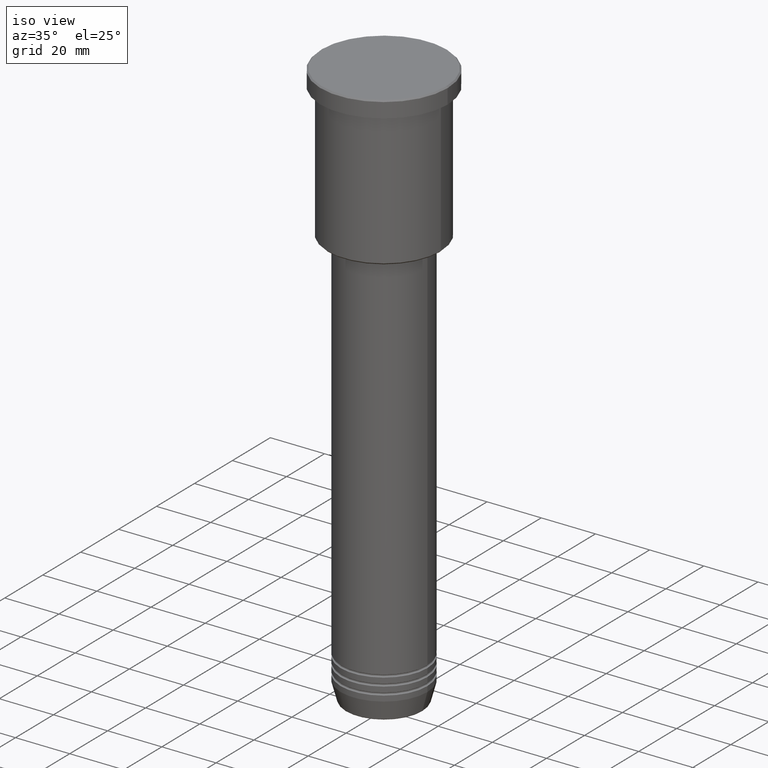
[diagram: clean part render]
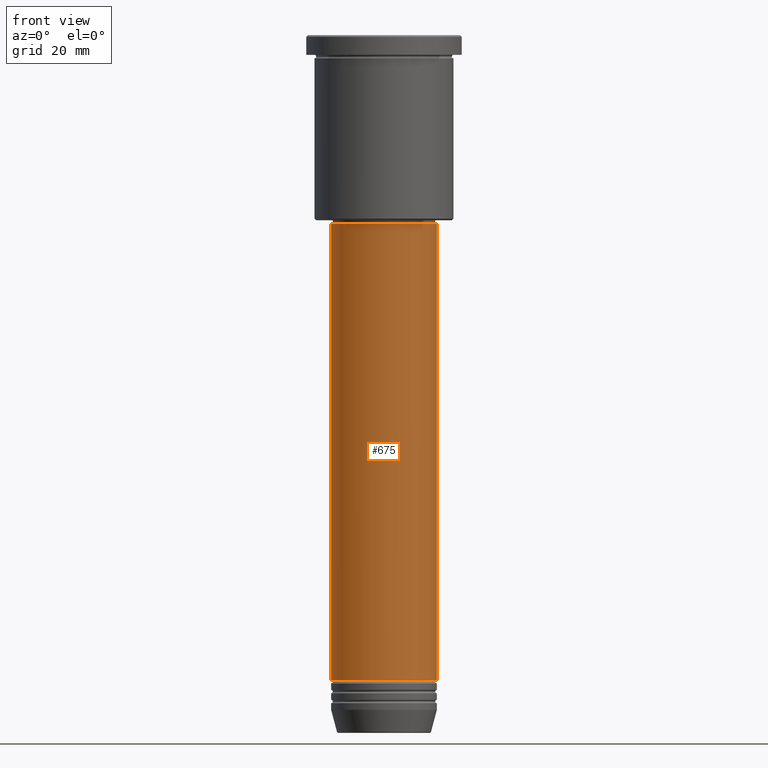
[diagram: tour spotlight — one face highlighted and labeled with its STEP entity id]
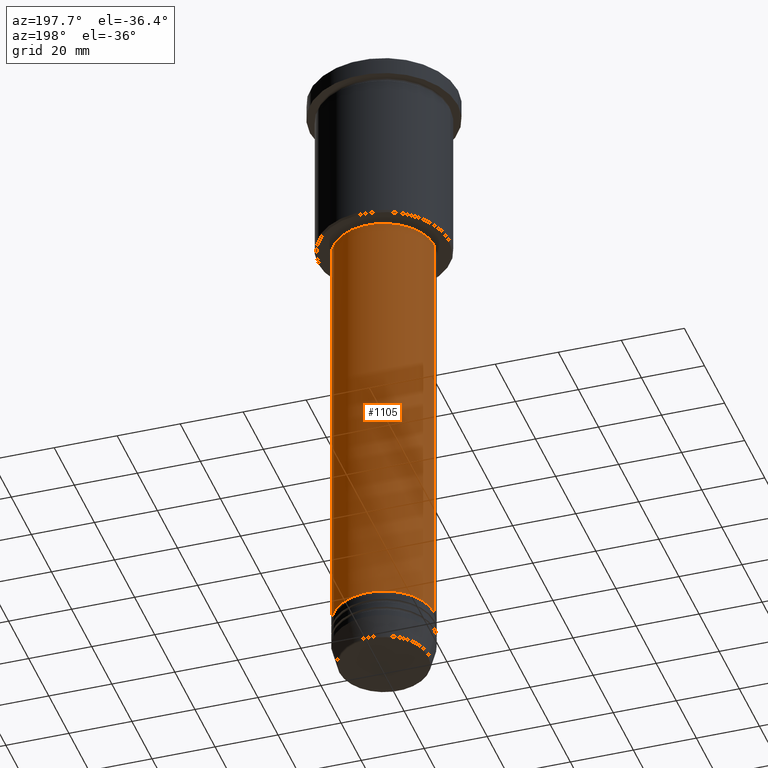
[diagram: tour spotlight — one face highlighted and labeled with its STEP entity id]
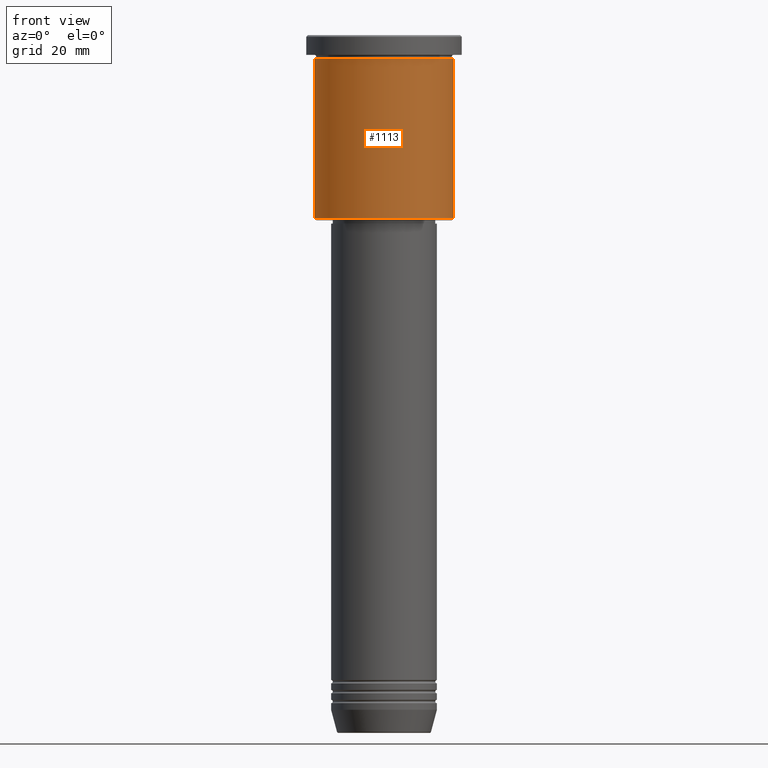
[diagram: tour spotlight — one face highlighted and labeled with its STEP entity id]
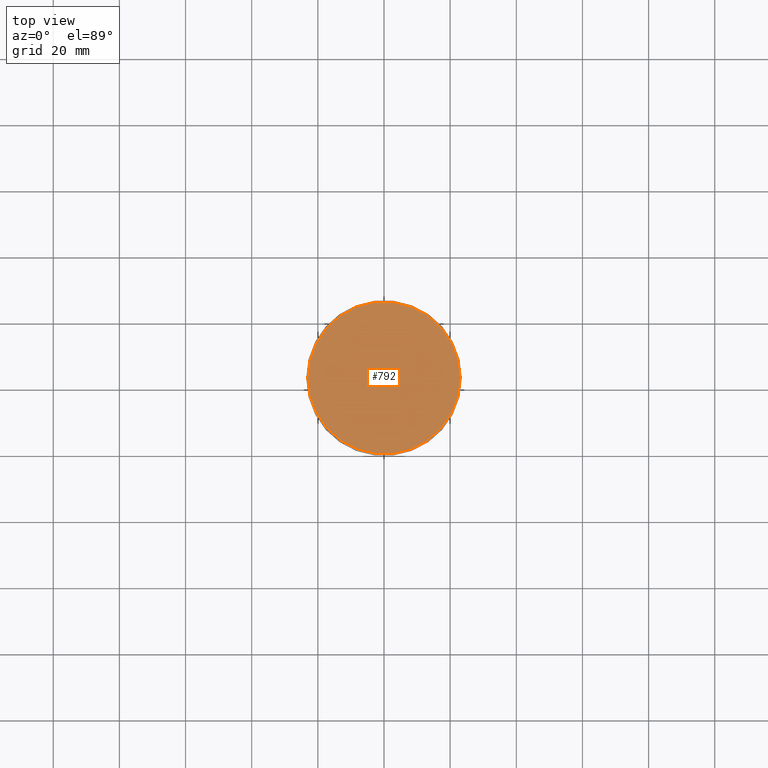
[diagram: tour spotlight — one face highlighted and labeled with its STEP entity id]
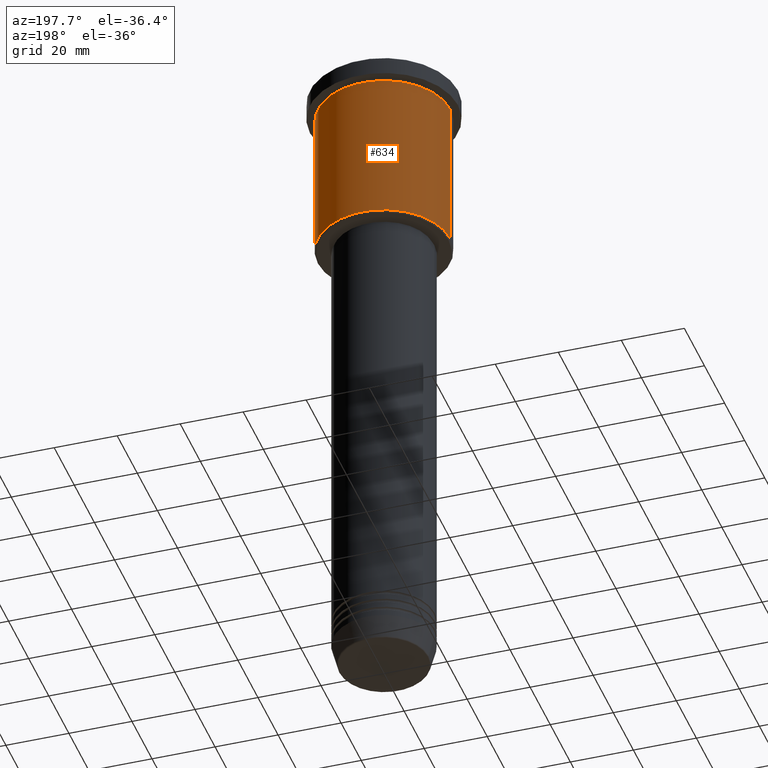
[diagram: tour spotlight — one face highlighted and labeled with its STEP entity id]
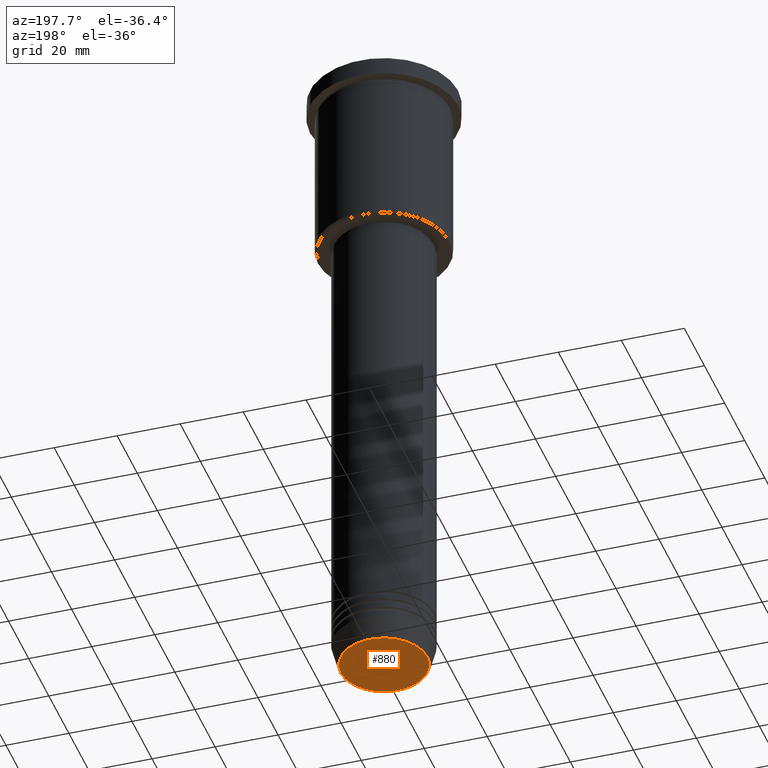
[diagram: tour spotlight — one face highlighted and labeled with its STEP entity id]
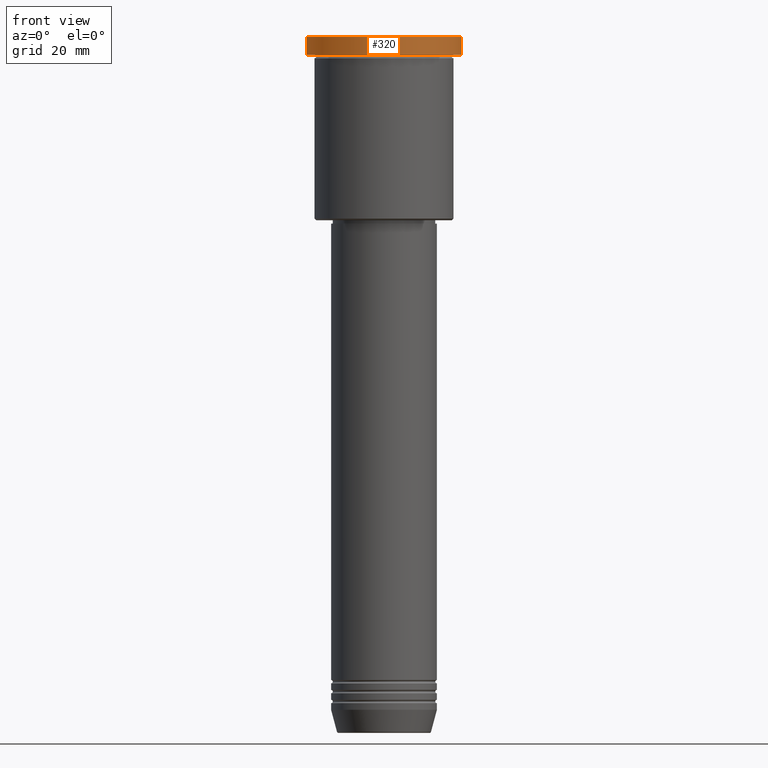
[diagram: tour spotlight — one face highlighted and labeled with its STEP entity id]
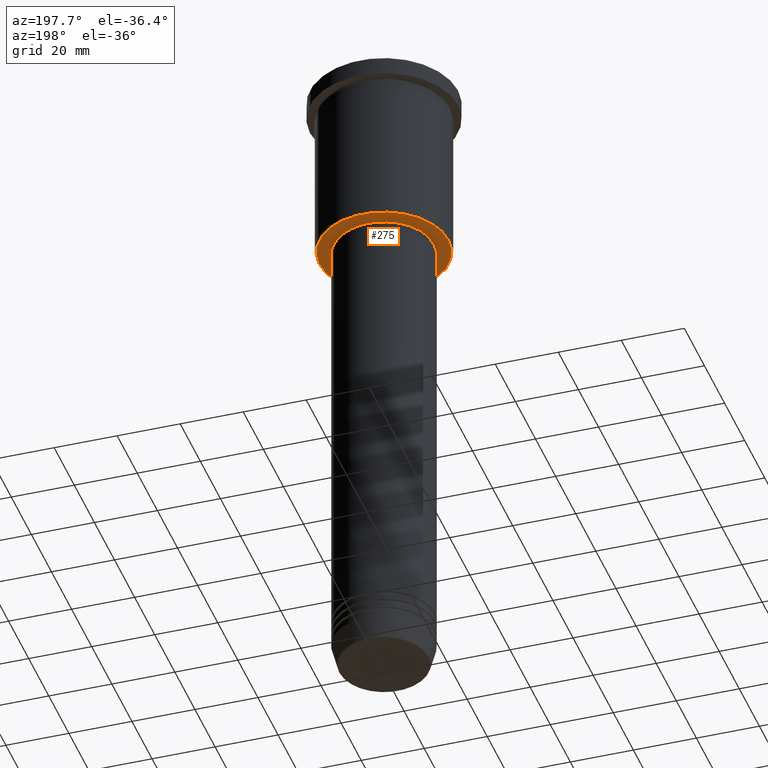
[diagram: tour spotlight — one face highlighted and labeled with its STEP entity id]
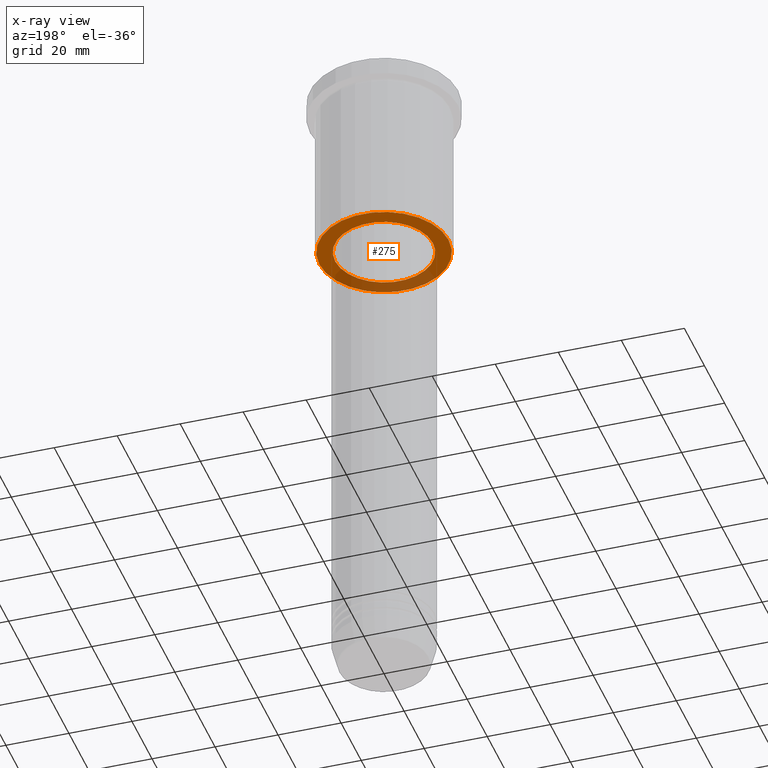
[diagram: x-ray of the same camera — body ghosted, this tour face saturated]
A machine part: a face-by-face anatomy tour. The part has 43 B-rep faces; the first image is the clean iso view, then the 8 largest visible faces are spotlighted one at a time (largest first), each with its STEP entity span.

Face 1 — front view, entity #675. In plain terms, the highlighted cylindrical surface (partial cylindrical patch) has radius 16 mm, axis along (-0, -0, 1).
Definition (entity closure, byte-faithful):
#39 = DIRECTION ( 'NONE',  ( -0.000000000000000000, -0.000000000000000000, 1.000000000000000000 ) ) ;
#50 = VERTEX_POINT ( 'NONE', #409 ) ;
#82 = CARTESIAN_POINT ( 'NONE',  ( 16.00000000000000000, 0.000000000000000000, 0.000000000000000000 ) ) ;
#142 = ORIENTED_EDGE ( 'NONE', *, *, #784, .F. ) ;
#284 = EDGE_LOOP ( 'NONE', ( #142, #872, #920, #397 ) ) ;
#291 = AXIS2_PLACEMENT_3D ( 'NONE', #305, #1034, #1046 ) ;
#304 = DIRECTION ( 'NONE',  ( 1.000000000000000000, 0.000000000000000000, 0.000000000000000000 ) ) ;
#305 = CARTESIAN_POINT ( 'NONE',  ( 0.000000000000000000, 0.000000000000000000, -57.00000000000000000 ) ) ;
#333 = VERTEX_POINT ( 'NONE', #846 ) ;
#397 = ORIENTED_EDGE ( 'NONE', *, *, #510, .F. ) ;
#402 = FACE_OUTER_BOUND ( 'NONE', #284, .T. ) ;
#406 = CARTESIAN_POINT ( 'NONE',  ( 0.000000000000000000, 0.000000000000000000, 0.000000000000000000 ) ) ;
#409 = CARTESIAN_POINT ( 'NONE',  ( -16.00000000000000000, 1.959434878635765131E-15, -57.00000000000000000 ) ) ;
#500 = CARTESIAN_POINT ( 'NONE',  ( -16.00000000000000000, 1.959434878635765131E-15, 0.000000000000000000 ) ) ;
#501 = VERTEX_POINT ( 'NONE', #859 ) ;
#510 = EDGE_CURVE ( 'NONE', #50, #501, #569, .T. ) ;
#531 = VECTOR ( 'NONE', #873, 1000.000000000000000 ) ;
#565 = CARTESIAN_POINT ( 'NONE',  ( 0.000000000000000000, 0.000000000000000000, -194.9999999999999716 ) ) ;
#569 = CIRCLE ( 'NONE', #291, 16.00000000000000000 ) ;
#588 = AXIS2_PLACEMENT_3D ( 'NONE', #565, #39, #304 ) ;
#675 = ADVANCED_FACE ( 'NONE', ( #402 ), #953, .T. ) ;
#760 = DIRECTION ( 'NONE',  ( 1.000000000000000000, 0.000000000000000000, 0.000000000000000000 ) ) ;
#784 = EDGE_CURVE ( 'NONE', #999, #50, #1043, .T. ) ;
#787 = CIRCLE ( 'NONE', #588, 16.00000000000000000 ) ;
#846 = CARTESIAN_POINT ( 'NONE',  ( 16.00000000000000000, 0.000000000000000000, -194.9999999999999716 ) ) ;
#859 = CARTESIAN_POINT ( 'NONE',  ( 16.00000000000000000, 0.000000000000000000, -57.00000000000000000 ) ) ;
#872 = ORIENTED_EDGE ( 'NONE', *, *, #1100, .T. ) ;
#873 = DIRECTION ( 'NONE',  ( -0.000000000000000000, -0.000000000000000000, 1.000000000000000000 ) ) ;
#920 = ORIENTED_EDGE ( 'NONE', *, *, #939, .T. ) ;
#938 = CARTESIAN_POINT ( 'NONE',  ( -16.00000000000000000, 1.959434878635765131E-15, -194.9999999999999716 ) ) ;
#939 = EDGE_CURVE ( 'NONE', #333, #501, #982, .T. ) ;
#953 = CYLINDRICAL_SURFACE ( 'NONE', #1170, 16.00000000000000000 ) ;
#982 = LINE ( 'NONE', #82, #1117 ) ;
#999 = VERTEX_POINT ( 'NONE', #938 ) ;
#1034 = DIRECTION ( 'NONE',  ( -0.000000000000000000, -0.000000000000000000, 1.000000000000000000 ) ) ;
#1043 = LINE ( 'NONE', #500, #531 ) ;
#1046 = DIRECTION ( 'NONE',  ( 1.000000000000000000, 0.000000000000000000, 0.000000000000000000 ) ) ;
#1054 = DIRECTION ( 'NONE',  ( -0.000000000000000000, -0.000000000000000000, 1.000000000000000000 ) ) ;
#1087 = DIRECTION ( 'NONE',  ( -0.000000000000000000, -0.000000000000000000, 1.000000000000000000 ) ) ;
#1100 = EDGE_CURVE ( 'NONE', #999, #333, #787, .T. ) ;
#1117 = VECTOR ( 'NONE', #1087, 1000.000000000000000 ) ;
#1170 = AXIS2_PLACEMENT_3D ( 'NONE', #406, #1054, #760 ) ;

Face 2 — auxiliary view, entity #1105. In plain terms, the highlighted cylindrical surface (partial cylindrical patch) has radius 16 mm, axis along (-0, -0, 1).
Definition (entity closure, byte-faithful):
#50 = VERTEX_POINT ( 'NONE', #409 ) ;
#82 = CARTESIAN_POINT ( 'NONE',  ( 16.00000000000000000, 0.000000000000000000, 0.000000000000000000 ) ) ;
#129 = ORIENTED_EDGE ( 'NONE', *, *, #539, .T. ) ;
#163 = ORIENTED_EDGE ( 'NONE', *, *, #784, .T. ) ;
#173 = EDGE_LOOP ( 'NONE', ( #129, #163, #980, #282 ) ) ;
#282 = ORIENTED_EDGE ( 'NONE', *, *, #939, .F. ) ;
#333 = VERTEX_POINT ( 'NONE', #846 ) ;
#409 = CARTESIAN_POINT ( 'NONE',  ( -16.00000000000000000, 1.959434878635765131E-15, -57.00000000000000000 ) ) ;
#435 = CIRCLE ( 'NONE', #1132, 16.00000000000000000 ) ;
#500 = CARTESIAN_POINT ( 'NONE',  ( -16.00000000000000000, 1.959434878635765131E-15, 0.000000000000000000 ) ) ;
#501 = VERTEX_POINT ( 'NONE', #859 ) ;
#520 = CARTESIAN_POINT ( 'NONE',  ( 0.000000000000000000, 0.000000000000000000, -194.9999999999999716 ) ) ;
#529 = AXIS2_PLACEMENT_3D ( 'NONE', #520, #894, #640 ) ;
#531 = VECTOR ( 'NONE', #873, 1000.000000000000000 ) ;
#539 = EDGE_CURVE ( 'NONE', #333, #999, #1153, .T. ) ;
#640 = DIRECTION ( 'NONE',  ( 1.000000000000000000, 0.000000000000000000, 0.000000000000000000 ) ) ;
#673 = FACE_OUTER_BOUND ( 'NONE', #173, .T. ) ;
#683 = DIRECTION ( 'NONE',  ( 1.000000000000000000, 0.000000000000000000, 0.000000000000000000 ) ) ;
#692 = CARTESIAN_POINT ( 'NONE',  ( 0.000000000000000000, 0.000000000000000000, -57.00000000000000000 ) ) ;
#704 = EDGE_CURVE ( 'NONE', #501, #50, #435, .T. ) ;
#755 = CYLINDRICAL_SURFACE ( 'NONE', #765, 16.00000000000000000 ) ;
#765 = AXIS2_PLACEMENT_3D ( 'NONE', #772, #1130, #1064 ) ;
#772 = CARTESIAN_POINT ( 'NONE',  ( 0.000000000000000000, 0.000000000000000000, 0.000000000000000000 ) ) ;
#784 = EDGE_CURVE ( 'NONE', #999, #50, #1043, .T. ) ;
#846 = CARTESIAN_POINT ( 'NONE',  ( 16.00000000000000000, 0.000000000000000000, -194.9999999999999716 ) ) ;
#859 = CARTESIAN_POINT ( 'NONE',  ( 16.00000000000000000, 0.000000000000000000, -57.00000000000000000 ) ) ;
#873 = DIRECTION ( 'NONE',  ( -0.000000000000000000, -0.000000000000000000, 1.000000000000000000 ) ) ;
#894 = DIRECTION ( 'NONE',  ( -0.000000000000000000, -0.000000000000000000, 1.000000000000000000 ) ) ;
#938 = CARTESIAN_POINT ( 'NONE',  ( -16.00000000000000000, 1.959434878635765131E-15, -194.9999999999999716 ) ) ;
#939 = EDGE_CURVE ( 'NONE', #333, #501, #982, .T. ) ;
#980 = ORIENTED_EDGE ( 'NONE', *, *, #704, .F. ) ;
#982 = LINE ( 'NONE', #82, #1117 ) ;
#999 = VERTEX_POINT ( 'NONE', #938 ) ;
#1043 = LINE ( 'NONE', #500, #531 ) ;
#1064 = DIRECTION ( 'NONE',  ( 1.000000000000000000, 0.000000000000000000, 0.000000000000000000 ) ) ;
#1066 = DIRECTION ( 'NONE',  ( -0.000000000000000000, -0.000000000000000000, 1.000000000000000000 ) ) ;
#1087 = DIRECTION ( 'NONE',  ( -0.000000000000000000, -0.000000000000000000, 1.000000000000000000 ) ) ;
#1105 = ADVANCED_FACE ( 'NONE', ( #673 ), #755, .T. ) ;
#1117 = VECTOR ( 'NONE', #1087, 1000.000000000000000 ) ;
#1130 = DIRECTION ( 'NONE',  ( -0.000000000000000000, -0.000000000000000000, 1.000000000000000000 ) ) ;
#1132 = AXIS2_PLACEMENT_3D ( 'NONE', #692, #1066, #683 ) ;
#1153 = CIRCLE ( 'NONE', #529, 16.00000000000000000 ) ;

Face 3 — front view, entity #1113. In plain terms, the highlighted cylindrical surface (partial cylindrical patch) has radius 21 mm, axis along (-0, -0, 1).
Definition (entity closure, byte-faithful):
#30 = CYLINDRICAL_SURFACE ( 'NONE', #204, 21.00000000000000000 ) ;
#37 = ORIENTED_EDGE ( 'NONE', *, *, #538, .F. ) ;
#52 = ORIENTED_EDGE ( 'NONE', *, *, #132, .F. ) ;
#54 = CIRCLE ( 'NONE', #722, 21.00000000000000000 ) ;
#66 = DIRECTION ( 'NONE',  ( -0.000000000000000000, -0.000000000000000000, 1.000000000000000000 ) ) ;
#76 = EDGE_CURVE ( 'NONE', #593, #1124, #54, .T. ) ;
#86 = CARTESIAN_POINT ( 'NONE',  ( 0.000000000000000000, 0.000000000000000000, -6.999999999999994671 ) ) ;
#115 = EDGE_CURVE ( 'NONE', #1124, #1047, #175, .T. ) ;
#132 = EDGE_CURVE ( 'NONE', #977, #1047, #257, .T. ) ;
#153 = CARTESIAN_POINT ( 'NONE',  ( -21.00000000000000000, 2.571758278209441661E-15, -55.49999999999999289 ) ) ;
#175 = LINE ( 'NONE', #535, #1150 ) ;
#204 = AXIS2_PLACEMENT_3D ( 'NONE', #589, #849, #942 ) ;
#248 = DIRECTION ( 'NONE',  ( -0.000000000000000000, -0.000000000000000000, 1.000000000000000000 ) ) ;
#257 = CIRCLE ( 'NONE', #783, 21.00000000000000000 ) ;
#260 = DIRECTION ( 'NONE',  ( -0.000000000000000000, -0.000000000000000000, 1.000000000000000000 ) ) ;
#344 = DIRECTION ( 'NONE',  ( -1.000000000000000000, 0.000000000000000000, 0.000000000000000000 ) ) ;
#422 = EDGE_LOOP ( 'NONE', ( #37, #536, #782, #52 ) ) ;
#446 = DIRECTION ( 'NONE',  ( -0.000000000000000000, -0.000000000000000000, 1.000000000000000000 ) ) ;
#485 = LINE ( 'NONE', #961, #1004 ) ;
#486 = CARTESIAN_POINT ( 'NONE',  ( 21.00000000000000000, 0.000000000000000000, -55.49999999999999289 ) ) ;
#525 = CARTESIAN_POINT ( 'NONE',  ( 0.000000000000000000, 0.000000000000000000, -55.49999999999999289 ) ) ;
#535 = CARTESIAN_POINT ( 'NONE',  ( 21.00000000000000000, 0.000000000000000000, 0.000000000000000000 ) ) ;
#536 = ORIENTED_EDGE ( 'NONE', *, *, #76, .T. ) ;
#538 = EDGE_CURVE ( 'NONE', #593, #977, #485, .T. ) ;
#589 = CARTESIAN_POINT ( 'NONE',  ( 0.000000000000000000, 0.000000000000000000, 0.000000000000000000 ) ) ;
#593 = VERTEX_POINT ( 'NONE', #153 ) ;
#666 = FACE_OUTER_BOUND ( 'NONE', #422, .T. ) ;
#722 = AXIS2_PLACEMENT_3D ( 'NONE', #525, #260, #344 ) ;
#782 = ORIENTED_EDGE ( 'NONE', *, *, #115, .T. ) ;
#783 = AXIS2_PLACEMENT_3D ( 'NONE', #86, #446, #820 ) ;
#820 = DIRECTION ( 'NONE',  ( 1.000000000000000000, 0.000000000000000000, 0.000000000000000000 ) ) ;
#849 = DIRECTION ( 'NONE',  ( -0.000000000000000000, -0.000000000000000000, 1.000000000000000000 ) ) ;
#888 = CARTESIAN_POINT ( 'NONE',  ( -21.00000000000000000, 2.571758278209441661E-15, -6.999999999999994671 ) ) ;
#942 = DIRECTION ( 'NONE',  ( 1.000000000000000000, 0.000000000000000000, 0.000000000000000000 ) ) ;
#961 = CARTESIAN_POINT ( 'NONE',  ( -21.00000000000000000, 2.571758278209441661E-15, 0.000000000000000000 ) ) ;
#977 = VERTEX_POINT ( 'NONE', #888 ) ;
#1004 = VECTOR ( 'NONE', #66, 1000.000000000000000 ) ;
#1011 = CARTESIAN_POINT ( 'NONE',  ( 21.00000000000000000, 0.000000000000000000, -6.999999999999994671 ) ) ;
#1047 = VERTEX_POINT ( 'NONE', #1011 ) ;
#1113 = ADVANCED_FACE ( 'NONE', ( #666 ), #30, .T. ) ;
#1124 = VERTEX_POINT ( 'NONE', #486 ) ;
#1150 = VECTOR ( 'NONE', #248, 1000.000000000000000 ) ;

Face 4 — top view, entity #792. In plain terms, the highlighted planar face has unit normal (0, -0, 1).
Definition (entity closure, byte-faithful):
#51 = PLANE ( 'NONE',  #1171 ) ;
#87 = ORIENTED_EDGE ( 'NONE', *, *, #668, .T. ) ;
#96 = CIRCLE ( 'NONE', #330, 23.00000000000002487 ) ;
#119 = VERTEX_POINT ( 'NONE', #242 ) ;
#140 = DIRECTION ( 'NONE',  ( 1.000000000000000000, 0.000000000000000000, 0.000000000000000000 ) ) ;
#203 = VERTEX_POINT ( 'NONE', #449 ) ;
#210 = DIRECTION ( 'NONE',  ( -0.000000000000000000, -0.000000000000000000, 1.000000000000000000 ) ) ;
#211 = ORIENTED_EDGE ( 'NONE', *, *, #1160, .T. ) ;
#242 = CARTESIAN_POINT ( 'NONE',  ( 23.00000000000002487, 2.847303808017597717E-15, 0.000000000000000000 ) ) ;
#300 = CARTESIAN_POINT ( 'NONE',  ( 0.000000000000000000, 0.000000000000000000, 0.000000000000000000 ) ) ;
#330 = AXIS2_PLACEMENT_3D ( 'NONE', #1138, #644, #140 ) ;
#396 = FACE_OUTER_BOUND ( 'NONE', #557, .T. ) ;
#449 = CARTESIAN_POINT ( 'NONE',  ( -23.00000000000002487, 0.000000000000000000, 0.000000000000000000 ) ) ;
#494 = CIRCLE ( 'NONE', #1027, 23.00000000000002487 ) ;
#557 = EDGE_LOOP ( 'NONE', ( #87, #211 ) ) ;
#644 = DIRECTION ( 'NONE',  ( -0.000000000000000000, -0.000000000000000000, 1.000000000000000000 ) ) ;
#668 = EDGE_CURVE ( 'NONE', #203, #119, #96, .T. ) ;
#677 = DIRECTION ( 'NONE',  ( 1.000000000000000000, 0.000000000000000000, 0.000000000000000000 ) ) ;
#770 = DIRECTION ( 'NONE',  ( 1.000000000000000000, 0.000000000000000000, 0.000000000000000000 ) ) ;
#792 = ADVANCED_FACE ( 'NONE', ( #396 ), #51, .T. ) ;
#976 = CARTESIAN_POINT ( 'NONE',  ( 0.000000000000000000, 0.000000000000000000, 0.000000000000000000 ) ) ;
#1027 = AXIS2_PLACEMENT_3D ( 'NONE', #300, #210, #677 ) ;
#1050 = DIRECTION ( 'NONE',  ( 0.000000000000000000, -0.000000000000000000, 1.000000000000000000 ) ) ;
#1138 = CARTESIAN_POINT ( 'NONE',  ( 0.000000000000000000, 0.000000000000000000, 0.000000000000000000 ) ) ;
#1160 = EDGE_CURVE ( 'NONE', #119, #203, #494, .T. ) ;
#1171 = AXIS2_PLACEMENT_3D ( 'NONE', #976, #1050, #770 ) ;

Face 5 — auxiliary view, entity #634. In plain terms, the highlighted cylindrical surface (partial cylindrical patch) has radius 21 mm, axis along (-0, -0, 1).
Definition (entity closure, byte-faithful):
#15 = EDGE_CURVE ( 'NONE', #1047, #977, #1168, .T. ) ;
#66 = DIRECTION ( 'NONE',  ( -0.000000000000000000, -0.000000000000000000, 1.000000000000000000 ) ) ;
#115 = EDGE_CURVE ( 'NONE', #1124, #1047, #175, .T. ) ;
#116 = EDGE_LOOP ( 'NONE', ( #464, #477, #768, #382 ) ) ;
#118 = DIRECTION ( 'NONE',  ( -0.000000000000000000, -0.000000000000000000, 1.000000000000000000 ) ) ;
#153 = CARTESIAN_POINT ( 'NONE',  ( -21.00000000000000000, 2.571758278209441661E-15, -55.49999999999999289 ) ) ;
#175 = LINE ( 'NONE', #535, #1150 ) ;
#208 = DIRECTION ( 'NONE',  ( 1.000000000000000000, 0.000000000000000000, 0.000000000000000000 ) ) ;
#248 = DIRECTION ( 'NONE',  ( -0.000000000000000000, -0.000000000000000000, 1.000000000000000000 ) ) ;
#278 = DIRECTION ( 'NONE',  ( -0.000000000000000000, -0.000000000000000000, 1.000000000000000000 ) ) ;
#382 = ORIENTED_EDGE ( 'NONE', *, *, #115, .F. ) ;
#464 = ORIENTED_EDGE ( 'NONE', *, *, #717, .T. ) ;
#477 = ORIENTED_EDGE ( 'NONE', *, *, #538, .T. ) ;
#485 = LINE ( 'NONE', #961, #1004 ) ;
#486 = CARTESIAN_POINT ( 'NONE',  ( 21.00000000000000000, 0.000000000000000000, -55.49999999999999289 ) ) ;
#535 = CARTESIAN_POINT ( 'NONE',  ( 21.00000000000000000, 0.000000000000000000, 0.000000000000000000 ) ) ;
#538 = EDGE_CURVE ( 'NONE', #593, #977, #485, .T. ) ;
#574 = CARTESIAN_POINT ( 'NONE',  ( 0.000000000000000000, 0.000000000000000000, -55.49999999999999289 ) ) ;
#585 = AXIS2_PLACEMENT_3D ( 'NONE', #574, #118, #1128 ) ;
#593 = VERTEX_POINT ( 'NONE', #153 ) ;
#634 = ADVANCED_FACE ( 'NONE', ( #773 ), #756, .T. ) ;
#661 = DIRECTION ( 'NONE',  ( 1.000000000000000000, 0.000000000000000000, 0.000000000000000000 ) ) ;
#717 = EDGE_CURVE ( 'NONE', #1124, #593, #1115, .T. ) ;
#756 = CYLINDRICAL_SURFACE ( 'NONE', #1023, 21.00000000000000000 ) ;
#768 = ORIENTED_EDGE ( 'NONE', *, *, #15, .F. ) ;
#773 = FACE_OUTER_BOUND ( 'NONE', #116, .T. ) ;
#823 = DIRECTION ( 'NONE',  ( -0.000000000000000000, -0.000000000000000000, 1.000000000000000000 ) ) ;
#888 = CARTESIAN_POINT ( 'NONE',  ( -21.00000000000000000, 2.571758278209441661E-15, -6.999999999999994671 ) ) ;
#961 = CARTESIAN_POINT ( 'NONE',  ( -21.00000000000000000, 2.571758278209441661E-15, 0.000000000000000000 ) ) ;
#977 = VERTEX_POINT ( 'NONE', #888 ) ;
#1004 = VECTOR ( 'NONE', #66, 1000.000000000000000 ) ;
#1011 = CARTESIAN_POINT ( 'NONE',  ( 21.00000000000000000, 0.000000000000000000, -6.999999999999994671 ) ) ;
#1023 = AXIS2_PLACEMENT_3D ( 'NONE', #1140, #823, #208 ) ;
#1047 = VERTEX_POINT ( 'NONE', #1011 ) ;
#1096 = AXIS2_PLACEMENT_3D ( 'NONE', #1116, #278, #661 ) ;
#1115 = CIRCLE ( 'NONE', #585, 21.00000000000000000 ) ;
#1116 = CARTESIAN_POINT ( 'NONE',  ( 0.000000000000000000, 0.000000000000000000, -6.999999999999994671 ) ) ;
#1124 = VERTEX_POINT ( 'NONE', #486 ) ;
#1128 = DIRECTION ( 'NONE',  ( -1.000000000000000000, 0.000000000000000000, 0.000000000000000000 ) ) ;
#1140 = CARTESIAN_POINT ( 'NONE',  ( 0.000000000000000000, 0.000000000000000000, 0.000000000000000000 ) ) ;
#1150 = VECTOR ( 'NONE', #248, 1000.000000000000000 ) ;
#1168 = CIRCLE ( 'NONE', #1096, 21.00000000000000000 ) ;

Face 6 — auxiliary view, entity #880. In plain terms, the highlighted planar face has unit normal (0, -0, 1).
Definition (entity closure, byte-faithful):
#33 = CARTESIAN_POINT ( 'NONE',  ( 13.74069215899266005, 0.000000000000000000, -211.0000000000000284 ) ) ;
#91 = DIRECTION ( 'NONE',  ( 0.000000000000000000, 0.000000000000000000, -1.000000000000000000 ) ) ;
#111 = CIRCLE ( 'NONE', #630, 13.74069215899266005 ) ;
#154 = EDGE_CURVE ( 'NONE', #702, #365, #860, .T. ) ;
#172 = DIRECTION ( 'NONE',  ( 1.000000000000000000, 0.000000000000000000, 0.000000000000000000 ) ) ;
#181 = AXIS2_PLACEMENT_3D ( 'NONE', #912, #91, #450 ) ;
#196 = EDGE_LOOP ( 'NONE', ( #875, #281 ) ) ;
#256 = CARTESIAN_POINT ( 'NONE',  ( 0.000000000000000000, 0.000000000000000000, -211.0000000000000284 ) ) ;
#280 = CARTESIAN_POINT ( 'NONE',  ( -13.74069215899266005, 1.712322416342416380E-15, -211.0000000000000284 ) ) ;
#281 = ORIENTED_EDGE ( 'NONE', *, *, #576, .T. ) ;
#365 = VERTEX_POINT ( 'NONE', #280 ) ;
#450 = DIRECTION ( 'NONE',  ( 1.000000000000000000, 0.000000000000000000, 0.000000000000000000 ) ) ;
#576 = EDGE_CURVE ( 'NONE', #365, #702, #111, .T. ) ;
#630 = AXIS2_PLACEMENT_3D ( 'NONE', #891, #973, #802 ) ;
#696 = DIRECTION ( 'NONE',  ( 0.000000000000000000, -0.000000000000000000, 1.000000000000000000 ) ) ;
#702 = VERTEX_POINT ( 'NONE', #33 ) ;
#802 = DIRECTION ( 'NONE',  ( 1.000000000000000000, 0.000000000000000000, 0.000000000000000000 ) ) ;
#805 = FACE_OUTER_BOUND ( 'NONE', #196, .T. ) ;
#860 = CIRCLE ( 'NONE', #181, 13.74069215899266005 ) ;
#875 = ORIENTED_EDGE ( 'NONE', *, *, #154, .T. ) ;
#880 = ADVANCED_FACE ( 'NONE', ( #805 ), #1008, .F. ) ;
#891 = CARTESIAN_POINT ( 'NONE',  ( 0.000000000000000000, 0.000000000000000000, -211.0000000000000284 ) ) ;
#912 = CARTESIAN_POINT ( 'NONE',  ( 0.000000000000000000, 0.000000000000000000, -211.0000000000000284 ) ) ;
#973 = DIRECTION ( 'NONE',  ( 0.000000000000000000, 0.000000000000000000, -1.000000000000000000 ) ) ;
#1008 = PLANE ( 'NONE',  #1101 ) ;
#1101 = AXIS2_PLACEMENT_3D ( 'NONE', #256, #696, #172 ) ;

Face 7 — front view, entity #320. In plain terms, the highlighted cylindrical surface (partial cylindrical patch) has radius 23.5 mm, axis along (-0, -0, 1).
Definition (entity closure, byte-faithful):
#26 = AXIS2_PLACEMENT_3D ( 'NONE', #834, #922, #195 ) ;
#90 = EDGE_CURVE ( 'NONE', #376, #835, #410, .T. ) ;
#93 = EDGE_CURVE ( 'NONE', #664, #835, #637, .T. ) ;
#114 = CIRCLE ( 'NONE', #26, 23.50000000000000000 ) ;
#144 = AXIS2_PLACEMENT_3D ( 'NONE', #901, #430, #997 ) ;
#195 = DIRECTION ( 'NONE',  ( 1.000000000000000000, 0.000000000000000000, 0.000000000000000000 ) ) ;
#217 = AXIS2_PLACEMENT_3D ( 'NONE', #231, #623, #605 ) ;
#221 = ORIENTED_EDGE ( 'NONE', *, *, #1093, .T. ) ;
#225 = CARTESIAN_POINT ( 'NONE',  ( -23.50000000000000000, 2.877919977996280320E-15, -0.5000000000000004441 ) ) ;
#231 = CARTESIAN_POINT ( 'NONE',  ( 0.000000000000000000, 0.000000000000000000, 0.000000000000000000 ) ) ;
#247 = CYLINDRICAL_SURFACE ( 'NONE', #217, 23.50000000000000000 ) ;
#255 = VERTEX_POINT ( 'NONE', #989 ) ;
#320 = ADVANCED_FACE ( 'NONE', ( #336 ), #247, .T. ) ;
#336 = FACE_OUTER_BOUND ( 'NONE', #862, .T. ) ;
#376 = VERTEX_POINT ( 'NONE', #1033 ) ;
#410 = CIRCLE ( 'NONE', #144, 23.50000000000000000 ) ;
#430 = DIRECTION ( 'NONE',  ( 0.000000000000000000, 0.000000000000000000, -1.000000000000000000 ) ) ;
#431 = LINE ( 'NONE', #625, #785 ) ;
#581 = EDGE_CURVE ( 'NONE', #255, #376, #431, .T. ) ;
#605 = DIRECTION ( 'NONE',  ( 1.000000000000000000, 0.000000000000000000, 0.000000000000000000 ) ) ;
#623 = DIRECTION ( 'NONE',  ( -0.000000000000000000, -0.000000000000000000, 1.000000000000000000 ) ) ;
#625 = CARTESIAN_POINT ( 'NONE',  ( 23.50000000000000000, 0.000000000000000000, 0.000000000000000000 ) ) ;
#637 = LINE ( 'NONE', #1174, #1112 ) ;
#664 = VERTEX_POINT ( 'NONE', #1037 ) ;
#757 = ORIENTED_EDGE ( 'NONE', *, *, #90, .T. ) ;
#785 = VECTOR ( 'NONE', #908, 1000.000000000000000 ) ;
#834 = CARTESIAN_POINT ( 'NONE',  ( 0.000000000000000000, 0.000000000000000000, -5.999999999999994671 ) ) ;
#835 = VERTEX_POINT ( 'NONE', #225 ) ;
#855 = ORIENTED_EDGE ( 'NONE', *, *, #581, .T. ) ;
#862 = EDGE_LOOP ( 'NONE', ( #906, #221, #855, #757 ) ) ;
#901 = CARTESIAN_POINT ( 'NONE',  ( 0.000000000000000000, 0.000000000000000000, -0.5000000000000004441 ) ) ;
#906 = ORIENTED_EDGE ( 'NONE', *, *, #93, .F. ) ;
#908 = DIRECTION ( 'NONE',  ( -0.000000000000000000, -0.000000000000000000, 1.000000000000000000 ) ) ;
#922 = DIRECTION ( 'NONE',  ( -0.000000000000000000, -0.000000000000000000, 1.000000000000000000 ) ) ;
#989 = CARTESIAN_POINT ( 'NONE',  ( 23.50000000000000000, 0.000000000000000000, -5.999999999999994671 ) ) ;
#997 = DIRECTION ( 'NONE',  ( 1.000000000000000000, 0.000000000000000000, 0.000000000000000000 ) ) ;
#1003 = DIRECTION ( 'NONE',  ( -0.000000000000000000, -0.000000000000000000, 1.000000000000000000 ) ) ;
#1033 = CARTESIAN_POINT ( 'NONE',  ( 23.50000000000000000, 0.000000000000000000, -0.5000000000000004441 ) ) ;
#1037 = CARTESIAN_POINT ( 'NONE',  ( -23.50000000000000000, 2.877919977996280320E-15, -5.999999999999994671 ) ) ;
#1093 = EDGE_CURVE ( 'NONE', #664, #255, #114, .T. ) ;
#1112 = VECTOR ( 'NONE', #1003, 1000.000000000000000 ) ;
#1174 = CARTESIAN_POINT ( 'NONE',  ( -23.50000000000000000, 2.877919977996280320E-15, 0.000000000000000000 ) ) ;

Face 8 — auxiliary view, entity #275. An x-ray twin of the same camera follows (body ghosted, this face saturated) — the face is partly hidden behind the body. In plain terms, the highlighted planar face has unit normal (0, 0, -1).
Definition (entity closure, byte-faithful):
#24 = AXIS2_PLACEMENT_3D ( 'NONE', #1162, #1092, #1178 ) ;
#29 = VERTEX_POINT ( 'NONE', #107 ) ;
#40 = AXIS2_PLACEMENT_3D ( 'NONE', #1089, #1154, #245 ) ;
#49 = ORIENTED_EDGE ( 'NONE', *, *, #884, .T. ) ;
#107 = CARTESIAN_POINT ( 'NONE',  ( -20.49999999999998934, 2.541142108230757480E-15, -55.99999999999999289 ) ) ;
#120 = EDGE_CURVE ( 'NONE', #174, #29, #434, .T. ) ;
#124 = EDGE_LOOP ( 'NONE', ( #49, #224 ) ) ;
#133 = DIRECTION ( 'NONE',  ( -0.000000000000000000, -0.000000000000000000, 1.000000000000000000 ) ) ;
#174 = VERTEX_POINT ( 'NONE', #1164 ) ;
#191 = DIRECTION ( 'NONE',  ( 0.000000000000000000, 0.000000000000000000, -1.000000000000000000 ) ) ;
#224 = ORIENTED_EDGE ( 'NONE', *, *, #777, .T. ) ;
#245 = DIRECTION ( 'NONE',  ( -1.000000000000000000, 0.000000000000000000, 0.000000000000000000 ) ) ;
#265 = EDGE_LOOP ( 'NONE', ( #1158, #459 ) ) ;
#275 = ADVANCED_FACE ( 'NONE', ( #474, #559 ), #1123, .T. ) ;
#306 = CARTESIAN_POINT ( 'NONE',  ( 0.000000000000000000, 0.000000000000000000, -55.99999999999999289 ) ) ;
#307 = VERTEX_POINT ( 'NONE', #613 ) ;
#309 = AXIS2_PLACEMENT_3D ( 'NONE', #749, #191, #934 ) ;
#412 = CIRCLE ( 'NONE', #40, 20.49999999999998934 ) ;
#434 = CIRCLE ( 'NONE', #1097, 20.49999999999998934 ) ;
#459 = ORIENTED_EDGE ( 'NONE', *, *, #594, .T. ) ;
#474 = FACE_OUTER_BOUND ( 'NONE', #265, .T. ) ;
#504 = DIRECTION ( 'NONE',  ( 1.000000000000000000, 0.000000000000000000, 0.000000000000000000 ) ) ;
#513 = CIRCLE ( 'NONE', #24, 15.50000000000000000 ) ;
#522 = DIRECTION ( 'NONE',  ( -1.000000000000000000, 0.000000000000000000, 0.000000000000000000 ) ) ;
#559 = FACE_BOUND ( 'NONE', #124, .T. ) ;
#594 = EDGE_CURVE ( 'NONE', #29, #174, #412, .T. ) ;
#596 = VERTEX_POINT ( 'NONE', #599 ) ;
#599 = CARTESIAN_POINT ( 'NONE',  ( -15.50000000000000000, 1.898202538678397557E-15, -55.99999999999999289 ) ) ;
#613 = CARTESIAN_POINT ( 'NONE',  ( 15.50000000000000000, 0.000000000000000000, -55.99999999999999289 ) ) ;
#614 = DIRECTION ( 'NONE',  ( 0.000000000000000000, 0.000000000000000000, -1.000000000000000000 ) ) ;
#749 = CARTESIAN_POINT ( 'NONE',  ( 0.000000000000000000, 21.00000000000000000, -55.99999999999999289 ) ) ;
#777 = EDGE_CURVE ( 'NONE', #596, #307, #1062, .T. ) ;
#884 = EDGE_CURVE ( 'NONE', #307, #596, #513, .T. ) ;
#907 = CARTESIAN_POINT ( 'NONE',  ( 0.000000000000000000, 0.000000000000000000, -55.99999999999999289 ) ) ;
#924 = AXIS2_PLACEMENT_3D ( 'NONE', #306, #133, #504 ) ;
#934 = DIRECTION ( 'NONE',  ( -1.000000000000000000, 0.000000000000000000, -0.000000000000000000 ) ) ;
#1062 = CIRCLE ( 'NONE', #924, 15.50000000000000000 ) ;
#1089 = CARTESIAN_POINT ( 'NONE',  ( 0.000000000000000000, 0.000000000000000000, -55.99999999999999289 ) ) ;
#1092 = DIRECTION ( 'NONE',  ( -0.000000000000000000, -0.000000000000000000, 1.000000000000000000 ) ) ;
#1097 = AXIS2_PLACEMENT_3D ( 'NONE', #907, #614, #522 ) ;
#1123 = PLANE ( 'NONE',  #309 ) ;
#1154 = DIRECTION ( 'NONE',  ( 0.000000000000000000, 0.000000000000000000, -1.000000000000000000 ) ) ;
#1158 = ORIENTED_EDGE ( 'NONE', *, *, #120, .T. ) ;
#1162 = CARTESIAN_POINT ( 'NONE',  ( 0.000000000000000000, 0.000000000000000000, -55.99999999999999289 ) ) ;
#1164 = CARTESIAN_POINT ( 'NONE',  ( 20.49999999999998934, 0.000000000000000000, -55.99999999999999289 ) ) ;
#1178 = DIRECTION ( 'NONE',  ( 1.000000000000000000, 0.000000000000000000, 0.000000000000000000 ) ) ;